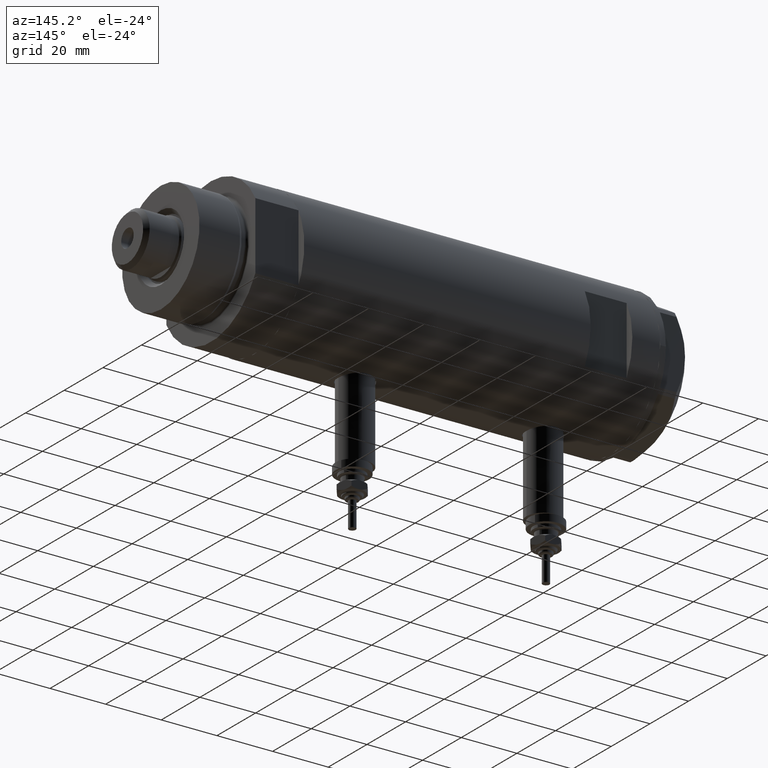
[diagram: clean part render]
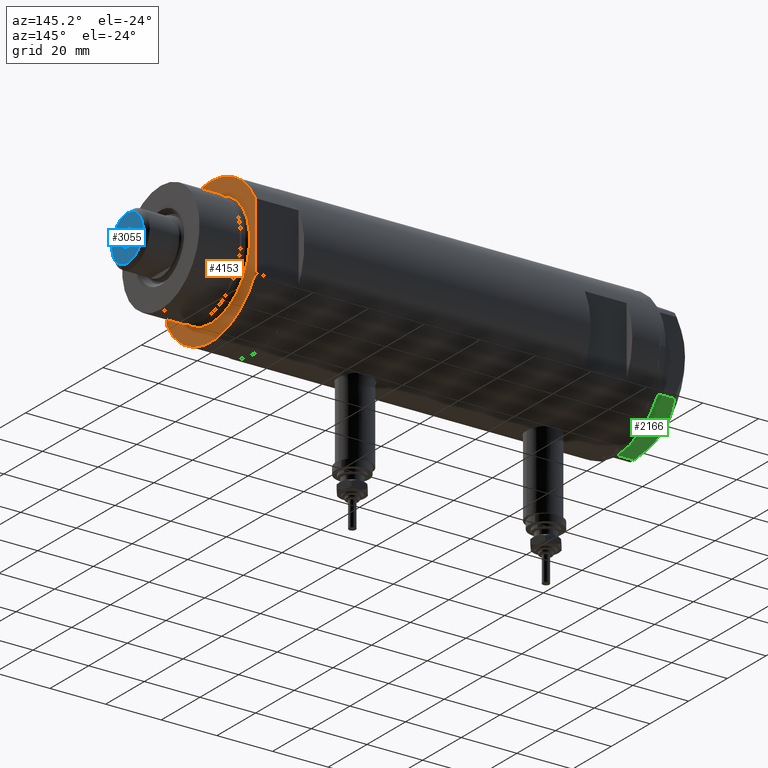
[diagram: same view with three faces highlighted in distinct colors, each labeled with its STEP entity id]
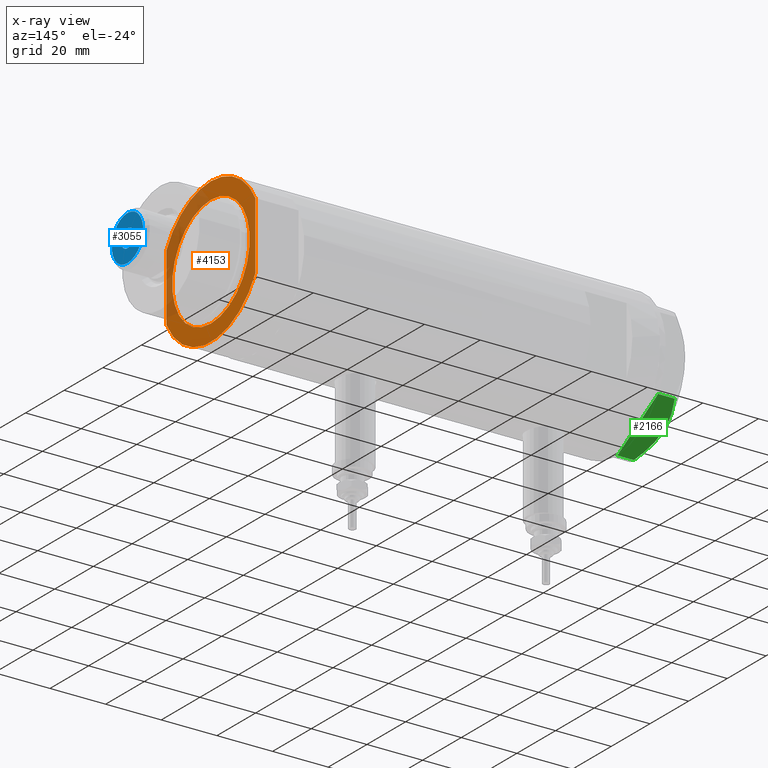
[diagram: x-ray of the same camera — body ghosted, the three highlighted faces saturated]
A machine part, auxiliary view with three faces highlighted in distinct colors.
The next image is the same camera in x-ray (body ghosted, the three faces saturated) — at least one of them is partly hidden behind the body in this view.
Their STEP definitions:

[orange] entity #4153 — the highlighted planar face has unit normal (1, 0, -0).
#141 = DIRECTION ( 'NONE',  ( -0.000000000000000000, -0.000000000000000000, -1.000000000000000000 ) ) ;
#176 = LINE ( 'NONE', #3622, #2680 ) ;
#362 = DIRECTION ( 'NONE',  ( 0.000000000000000000, 0.000000000000000000, 1.000000000000000000 ) ) ;
#374 = DIRECTION ( 'NONE',  ( 1.000000000000000000, 0.000000000000000000, 0.000000000000000000 ) ) ;
#481 = VERTEX_POINT ( 'NONE', #3566 ) ;
#552 = ORIENTED_EDGE ( 'NONE', *, *, #3615, .T. ) ;
#643 = AXIS2_PLACEMENT_3D ( 'NONE', #2772, #6214, #1351 ) ;
#678 = ORIENTED_EDGE ( 'NONE', *, *, #4928, .F. ) ;
#739 = VERTEX_POINT ( 'NONE', #4173 ) ;
#825 = DIRECTION ( 'NONE',  ( 1.000000000000000000, 0.000000000000000000, 0.000000000000000000 ) ) ;
#1011 = EDGE_CURVE ( 'NONE', #5907, #739, #5561, .T. ) ;
#1167 = ORIENTED_EDGE ( 'NONE', *, *, #4737, .T. ) ;
#1172 = CIRCLE ( 'NONE', #2685, 20.00000000000000000 ) ;
#1298 = FACE_BOUND ( 'NONE', #2580, .T. ) ;
#1323 = EDGE_CURVE ( 'NONE', #4190, #739, #4773, .T. ) ;
#1351 = DIRECTION ( 'NONE',  ( 1.000000000000000000, 0.000000000000000000, 0.000000000000000000 ) ) ;
#1372 = DIRECTION ( 'NONE',  ( -0.000000000000000000, -0.000000000000000000, -1.000000000000000000 ) ) ;
#1467 = CIRCLE ( 'NONE', #643, 26.00000000000000355 ) ;
#1591 = VERTEX_POINT ( 'NONE', #4505 ) ;
#1764 = DIRECTION ( 'NONE',  ( 1.000000000000000000, 0.000000000000000000, 0.000000000000000000 ) ) ;
#1971 = CIRCLE ( 'NONE', #4284, 20.00000000000000000 ) ;
#2061 = CARTESIAN_POINT ( 'NONE',  ( -12.12435565298215145, 23.00000000000000355, 15.50000000000000000 ) ) ;
#2089 = DIRECTION ( 'NONE',  ( 1.000000000000000000, 0.000000000000000000, 0.000000000000000000 ) ) ;
#2262 = FACE_OUTER_BOUND ( 'NONE', #5101, .T. ) ;
#2580 = EDGE_LOOP ( 'NONE', ( #552, #5566 ) ) ;
#2651 = DIRECTION ( 'NONE',  ( 0.000000000000000000, 0.000000000000000000, 1.000000000000000000 ) ) ;
#2656 = VERTEX_POINT ( 'NONE', #5257 ) ;
#2680 = VECTOR ( 'NONE', #4062, 1000.000000000000000 ) ;
#2685 = AXIS2_PLACEMENT_3D ( 'NONE', #2828, #1372, #374 ) ;
#2772 = CARTESIAN_POINT ( 'NONE',  ( 0.000000000000000000, 0.000000000000000000, 15.50000000000000000 ) ) ;
#2828 = CARTESIAN_POINT ( 'NONE',  ( 0.000000000000000000, 0.000000000000000000, 15.50000000000000000 ) ) ;
#2909 = VERTEX_POINT ( 'NONE', #6117 ) ;
#2954 = AXIS2_PLACEMENT_3D ( 'NONE', #6212, #2651, #1764 ) ;
#3566 = CARTESIAN_POINT ( 'NONE',  ( -26.00000000000000355, 0.000000000000000000, 15.50000000000000000 ) ) ;
#3615 = EDGE_CURVE ( 'NONE', #2656, #2909, #1971, .T. ) ;
#3622 = CARTESIAN_POINT ( 'NONE',  ( -12.12435565298215145, -22.99999999999999645, 15.50000000000000000 ) ) ;
#3633 = VECTOR ( 'NONE', #5909, 1000.000000000000000 ) ;
#3998 = DIRECTION ( 'NONE',  ( 0.000000000000000000, 0.000000000000000000, 1.000000000000000000 ) ) ;
#4062 = DIRECTION ( 'NONE',  ( -1.000000000000000000, -0.000000000000000000, -0.000000000000000000 ) ) ;
#4153 = ADVANCED_FACE ( 'NONE', ( #1298, #2262 ), #5216, .T. ) ;
#4173 = CARTESIAN_POINT ( 'NONE',  ( 12.12435565298214790, 23.00000000000000355, 15.50000000000000000 ) ) ;
#4190 = VERTEX_POINT ( 'NONE', #5859 ) ;
#4284 = AXIS2_PLACEMENT_3D ( 'NONE', #5551, #141, #2089 ) ;
#4479 = CARTESIAN_POINT ( 'NONE',  ( 0.000000000000000000, 0.000000000000000000, 15.50000000000000000 ) ) ;
#4505 = CARTESIAN_POINT ( 'NONE',  ( -12.12435565298215323, -22.99999999999999645, 15.50000000000000000 ) ) ;
#4507 = AXIS2_PLACEMENT_3D ( 'NONE', #4479, #3998, #825 ) ;
#4737 = EDGE_CURVE ( 'NONE', #5907, #481, #1467, .T. ) ;
#4773 = CIRCLE ( 'NONE', #2954, 26.00000000000000355 ) ;
#4801 = AXIS2_PLACEMENT_3D ( 'NONE', #6185, #362, #5699 ) ;
#4928 = EDGE_CURVE ( 'NONE', #4190, #1591, #176, .T. ) ;
#4965 = EDGE_CURVE ( 'NONE', #481, #1591, #6258, .T. ) ;
#4981 = CARTESIAN_POINT ( 'NONE',  ( -12.12435565298214613, 23.00000000000000355, 15.50000000000000000 ) ) ;
#5097 = EDGE_CURVE ( 'NONE', #2909, #2656, #1172, .T. ) ;
#5101 = EDGE_LOOP ( 'NONE', ( #678, #5716, #6080, #1167, #6108 ) ) ;
#5216 = PLANE ( 'NONE',  #4801 ) ;
#5257 = CARTESIAN_POINT ( 'NONE',  ( 20.00000000000000000, 0.000000000000000000, 15.50000000000000000 ) ) ;
#5551 = CARTESIAN_POINT ( 'NONE',  ( 0.000000000000000000, 0.000000000000000000, 15.50000000000000000 ) ) ;
#5561 = LINE ( 'NONE', #2061, #3633 ) ;
#5566 = ORIENTED_EDGE ( 'NONE', *, *, #5097, .T. ) ;
#5699 = DIRECTION ( 'NONE',  ( 1.000000000000000000, 0.000000000000000000, -0.000000000000000000 ) ) ;
#5716 = ORIENTED_EDGE ( 'NONE', *, *, #1323, .T. ) ;
#5859 = CARTESIAN_POINT ( 'NONE',  ( 12.12435565298215323, -22.99999999999999645, 15.50000000000000000 ) ) ;
#5907 = VERTEX_POINT ( 'NONE', #4981 ) ;
#5909 = DIRECTION ( 'NONE',  ( 1.000000000000000000, 0.000000000000000000, 0.000000000000000000 ) ) ;
#6080 = ORIENTED_EDGE ( 'NONE', *, *, #1011, .F. ) ;
#6108 = ORIENTED_EDGE ( 'NONE', *, *, #4965, .T. ) ;
#6117 = CARTESIAN_POINT ( 'NONE',  ( -20.00000000000000000, 2.449293598294706513E-15, 15.50000000000000000 ) ) ;
#6185 = CARTESIAN_POINT ( 'NONE',  ( 0.000000000000000000, 0.000000000000000000, 15.50000000000000000 ) ) ;
#6212 = CARTESIAN_POINT ( 'NONE',  ( 0.000000000000000000, 0.000000000000000000, 15.50000000000000000 ) ) ;
#6214 = DIRECTION ( 'NONE',  ( 0.000000000000000000, 0.000000000000000000, 1.000000000000000000 ) ) ;
#6258 = CIRCLE ( 'NONE', #4507, 26.00000000000000355 ) ;

[blue] entity #3055 — the highlighted planar face has unit normal (1, 0, -0).
#82 = DIRECTION ( 'NONE',  ( 0.000000000000000000, 0.000000000000000000, 1.000000000000000000 ) ) ;
#301 = EDGE_CURVE ( 'NONE', #3924, #766, #2308, .T. ) ;
#476 = ORIENTED_EDGE ( 'NONE', *, *, #301, .F. ) ;
#520 = CARTESIAN_POINT ( 'NONE',  ( 3.249999999999998224, 0.000000000000000000, 149.6000000000000227 ) ) ;
#589 = DIRECTION ( 'NONE',  ( 1.000000000000000000, 0.000000000000000000, 0.000000000000000000 ) ) ;
#709 = CARTESIAN_POINT ( 'NONE',  ( 0.000000000000000000, 0.000000000000000000, 149.6000000000000227 ) ) ;
#766 = VERTEX_POINT ( 'NONE', #5512 ) ;
#1056 = AXIS2_PLACEMENT_3D ( 'NONE', #2506, #82, #589 ) ;
#1199 = CARTESIAN_POINT ( 'NONE',  ( 0.000000000000000000, 0.000000000000000000, 149.6000000000000227 ) ) ;
#1255 = DIRECTION ( 'NONE',  ( 1.000000000000000000, 0.000000000000000000, 0.000000000000000000 ) ) ;
#1262 = AXIS2_PLACEMENT_3D ( 'NONE', #3245, #5289, #1270 ) ;
#1270 = DIRECTION ( 'NONE',  ( 1.000000000000000000, 0.000000000000000000, -0.000000000000000000 ) ) ;
#1466 = CARTESIAN_POINT ( 'NONE',  ( 0.000000000000000000, 0.000000000000000000, 149.6000000000000227 ) ) ;
#1788 = CARTESIAN_POINT ( 'NONE',  ( 8.099999999999981881, 1.077689183249669619E-15, 149.6000000000000227 ) ) ;
#2072 = ORIENTED_EDGE ( 'NONE', *, *, #3982, .F. ) ;
#2308 = CIRCLE ( 'NONE', #5692, 3.249999999999998224 ) ;
#2389 = EDGE_CURVE ( 'NONE', #6097, #2409, #6255, .T. ) ;
#2409 = VERTEX_POINT ( 'NONE', #4541 ) ;
#2506 = CARTESIAN_POINT ( 'NONE',  ( 0.000000000000000000, 0.000000000000000000, 149.6000000000000227 ) ) ;
#2546 = ORIENTED_EDGE ( 'NONE', *, *, #2964, .T. ) ;
#2791 = FACE_BOUND ( 'NONE', #2850, .T. ) ;
#2850 = EDGE_LOOP ( 'NONE', ( #476, #2072 ) ) ;
#2964 = EDGE_CURVE ( 'NONE', #2409, #6097, #6061, .T. ) ;
#2981 = CIRCLE ( 'NONE', #4404, 3.249999999999998224 ) ;
#3033 = ORIENTED_EDGE ( 'NONE', *, *, #2389, .T. ) ;
#3055 = ADVANCED_FACE ( 'NONE', ( #6250, #2791 ), #4727, .T. ) ;
#3200 = DIRECTION ( 'NONE',  ( 1.000000000000000000, 0.000000000000000000, 0.000000000000000000 ) ) ;
#3245 = CARTESIAN_POINT ( 'NONE',  ( 0.000000000000000000, 0.000000000000000000, 149.6000000000000227 ) ) ;
#3924 = VERTEX_POINT ( 'NONE', #520 ) ;
#3982 = EDGE_CURVE ( 'NONE', #766, #3924, #2981, .T. ) ;
#4017 = DIRECTION ( 'NONE',  ( -0.000000000000000000, -0.000000000000000000, 1.000000000000000000 ) ) ;
#4079 = DIRECTION ( 'NONE',  ( 1.000000000000000000, 0.000000000000000000, 0.000000000000000000 ) ) ;
#4404 = AXIS2_PLACEMENT_3D ( 'NONE', #1199, #4017, #4079 ) ;
#4541 = CARTESIAN_POINT ( 'NONE',  ( -8.099999999999981881, 0.000000000000000000, 149.6000000000000227 ) ) ;
#4704 = AXIS2_PLACEMENT_3D ( 'NONE', #1466, #5365, #1255 ) ;
#4727 = PLANE ( 'NONE',  #1262 ) ;
#5150 = DIRECTION ( 'NONE',  ( -0.000000000000000000, -0.000000000000000000, 1.000000000000000000 ) ) ;
#5289 = DIRECTION ( 'NONE',  ( 0.000000000000000000, 0.000000000000000000, 1.000000000000000000 ) ) ;
#5365 = DIRECTION ( 'NONE',  ( 0.000000000000000000, 0.000000000000000000, 1.000000000000000000 ) ) ;
#5512 = CARTESIAN_POINT ( 'NONE',  ( -3.249999999999998224, 3.980102097228895766E-16, 149.6000000000000227 ) ) ;
#5692 = AXIS2_PLACEMENT_3D ( 'NONE', #709, #5150, #3200 ) ;
#5983 = EDGE_LOOP ( 'NONE', ( #2546, #3033 ) ) ;
#6061 = CIRCLE ( 'NONE', #4704, 8.099999999999981881 ) ;
#6097 = VERTEX_POINT ( 'NONE', #1788 ) ;
#6250 = FACE_OUTER_BOUND ( 'NONE', #5983, .T. ) ;
#6255 = CIRCLE ( 'NONE', #1056, 8.099999999999981881 ) ;

[green] entity #2166 — the highlighted planar face has unit normal (0, -0.5, 0.866).
#222 = VECTOR ( 'NONE', #5351, 1000.000000000000000 ) ;
#310 = CARTESIAN_POINT ( 'NONE',  ( 18.67981377008996446, 15.77331687414937278, 7.629374868826049649 ) ) ;
#315 = CARTESIAN_POINT ( 'NONE',  ( 9.678244919010086988, 20.97037507344920826, 9.000000000000001776 ) ) ;
#603 = ORIENTED_EDGE ( 'NONE', *, *, #835, .F. ) ;
#628 = AXIS2_PLACEMENT_3D ( 'NONE', #4697, #3249, #2799 ) ;
#760 = CARTESIAN_POINT ( 'NONE',  ( 11.95865151389051917, 19.65378171203322566, 9.000000000000005329 ) ) ;
#765 = VERTEX_POINT ( 'NONE', #6143 ) ;
#831 = CARTESIAN_POINT ( 'NONE',  ( 4.357207709416038632, 24.04247733877631532, 7.570552255229681116 ) ) ;
#835 = EDGE_CURVE ( 'NONE', #5044, #3993, #4951, .T. ) ;
#866 = CARTESIAN_POINT ( 'NONE',  ( 11.49999999999990408, 19.91858428704219364, 9.000000000000000000 ) ) ;
#883 = CARTESIAN_POINT ( 'NONE',  ( 0.9699484522385816154, 25.99811238272274494, 9.000000000000000000 ) ) ;
#1177 = CARTESIAN_POINT ( 'NONE',  ( 22.03005154776138852, 13.83905619136154819, 5.983800287807532037 ) ) ;
#1251 = CARTESIAN_POINT ( 'NONE',  ( 1.799196345396824492, 25.51934588838292228, 6.431317509509382191 ) ) ;
#1278 = CARTESIAN_POINT ( 'NONE',  ( 11.49999999999990408, 19.91858428704219364, 9.000000000000000000 ) ) ;
#1326 = ORIENTED_EDGE ( 'NONE', *, *, #4885, .T. ) ;
#1404 = VERTEX_POINT ( 'NONE', #1912 ) ;
#1658 = VERTEX_POINT ( 'NONE', #1177 ) ;
#1725 = PLANE ( 'NONE',  #628 ) ;
#1790 = CARTESIAN_POINT ( 'NONE',  ( 0.9999999999999297229, 25.98076211353316722, 0.000000000000000000 ) ) ;
#1843 = CARTESIAN_POINT ( 'NONE',  ( 15.16323225988329959, 17.80361615569442790, 8.637313967156861949 ) ) ;
#1912 = CARTESIAN_POINT ( 'NONE',  ( 0.9699484522385816154, 25.99811238272274494, 0.000000000000000000 ) ) ;
#1955 = LINE ( 'NONE', #5317, #2982 ) ;
#2098 = CARTESIAN_POINT ( 'NONE',  ( 22.03005154776124286, 13.83905619136163168, 9.000000000000000000 ) ) ;
#2103 = ORIENTED_EDGE ( 'NONE', *, *, #2632, .T. ) ;
#2131 = EDGE_CURVE ( 'NONE', #1658, #5044, #3996, .T. ) ;
#2166 = ADVANCED_FACE ( 'NONE', ( #5713 ), #1725, .F. ) ;
#2361 = LINE ( 'NONE', #883, #222 ) ;
#2484 = VECTOR ( 'NONE', #6114, 999.9999999999998863 ) ;
#2632 = EDGE_CURVE ( 'NONE', #3713, #765, #1955, .T. ) ;
#2637 = LINE ( 'NONE', #5061, #4096 ) ;
#2664 = EDGE_CURVE ( 'NONE', #1404, #3993, #2361, .T. ) ;
#2739 = CARTESIAN_POINT ( 'NONE',  ( 2.640413878806739945, 25.03366871902167290, 6.844201024438365089 ) ) ;
#2799 = DIRECTION ( 'NONE',  ( 0.8660254037844415942, -0.4999999999999949485, 0.000000000000000000 ) ) ;
#2885 = ORIENTED_EDGE ( 'NONE', *, *, #4855, .T. ) ;
#2982 = VECTOR ( 'NONE', #4856, 999.9999999999998863 ) ;
#3150 = DIRECTION ( 'NONE',  ( -0.8660254037844415942, 0.4999999999999949485, 0.000000000000000000 ) ) ;
#3160 = CARTESIAN_POINT ( 'NONE',  ( 7.884645426989626671, 22.00591022298560517, 8.707651728476925257 ) ) ;
#3249 = DIRECTION ( 'NONE',  ( -0.4999999999999949485, -0.8660254037844415942, 0.000000000000000000 ) ) ;
#3284 = CARTESIAN_POINT ( 'NONE',  ( 5.229981517798067081, 23.53858114556529912, 7.892128867758392730 ) ) ;
#3677 = CARTESIAN_POINT ( 'NONE',  ( 20.37350567916420019, 14.79546339452108050, 6.877782426143415506 ) ) ;
#3685 = CARTESIAN_POINT ( 'NONE',  ( 0.9699484522385767304, 25.99811238272274849, 5.983800287807627960 ) ) ;
#3713 = VERTEX_POINT ( 'NONE', #5967 ) ;
#3745 = CARTESIAN_POINT ( 'NONE',  ( 16.05322244309623869, 17.28978008384030929, 8.426899937603700153 ) ) ;
#3751 = CARTESIAN_POINT ( 'NONE',  ( 5.671686373602799591, 23.28356272816407824, 8.040681765829278405 ) ) ;
#3769 = ORIENTED_EDGE ( 'NONE', *, *, #2664, .T. ) ;
#3993 = VERTEX_POINT ( 'NONE', #5515 ) ;
#3996 = B_SPLINE_CURVE_WITH_KNOTS ( 'NONE', 3,
 ( #4161, #3677, #310, #3745, #1843, #4193, #6110, #6137, #760, #1278 ),
 .UNSPECIFIED., .F., .F.,
 ( 4, 2, 2, 2, 4 ),
 ( 0.001228959670438493522, 0.007497079744270714746, 0.01063113978118682655, 0.01219816979964488159, 0.01376519981810293489 ),
 .UNSPECIFIED. ) ;
#4096 = VECTOR ( 'NONE', #3150, 999.9999999999998863 ) ;
#4161 = CARTESIAN_POINT ( 'NONE',  ( 22.03005154776138852, 13.83905619136154819, 5.983800287807532037 ) ) ;
#4193 = CARTESIAN_POINT ( 'NONE',  ( 13.80210138309697498, 18.58946543380931260, 8.852712638955710034 ) ) ;
#4226 = ORIENTED_EDGE ( 'NONE', *, *, #5185, .T. ) ;
#4602 = ORIENTED_EDGE ( 'NONE', *, *, #2131, .F. ) ;
#4697 = CARTESIAN_POINT ( 'NONE',  ( 22.99999999999981171, 13.27905619136164184, 9.000000000000000000 ) ) ;
#4734 = CARTESIAN_POINT ( 'NONE',  ( 11.49999999999990408, 19.91858428704219364, 9.000000000000000000 ) ) ;
#4855 = EDGE_CURVE ( 'NONE', #1658, #3713, #4991, .T. ) ;
#4856 = DIRECTION ( 'NONE',  ( -0.8660254037844415942, 0.4999999999999949485, 0.000000000000000000 ) ) ;
#4885 = EDGE_CURVE ( 'NONE', #5202, #1404, #2637, .T. ) ;
#4951 = B_SPLINE_CURVE_WITH_KNOTS ( 'NONE', 3,
 ( #866, #315, #3160, #3751, #3284, #831, #6115, #2739, #1251, #3685 ),
 .UNSPECIFIED., .F., .F.,
 ( 4, 2, 2, 2, 4 ),
 ( 0.01376519981810293489, 0.01998941321701561136, 0.02154546656674377961, 0.02310151991647194786, 0.02621362661592828783 ),
 .UNSPECIFIED. ) ;
#4991 = LINE ( 'NONE', #2098, #5657 ) ;
#5044 = VERTEX_POINT ( 'NONE', #4734 ) ;
#5061 = CARTESIAN_POINT ( 'NONE',  ( 22.99999999999981171, 13.27905619136164184, 0.000000000000000000 ) ) ;
#5185 = EDGE_CURVE ( 'NONE', #765, #5202, #6140, .T. ) ;
#5202 = VERTEX_POINT ( 'NONE', #1790 ) ;
#5203 = CARTESIAN_POINT ( 'NONE',  ( 22.99999999999981171, 13.27905619136164184, 0.000000000000000000 ) ) ;
#5317 = CARTESIAN_POINT ( 'NONE',  ( 22.99999999999981171, 13.27905619136164184, 0.000000000000000000 ) ) ;
#5351 = DIRECTION ( 'NONE',  ( 0.000000000000000000, 0.000000000000000000, 1.000000000000000000 ) ) ;
#5515 = CARTESIAN_POINT ( 'NONE',  ( 0.9699484522385767304, 25.99811238272274849, 5.983800287807627960 ) ) ;
#5657 = VECTOR ( 'NONE', #6075, 1000.000000000000000 ) ;
#5713 = FACE_OUTER_BOUND ( 'NONE', #6201, .T. ) ;
#5967 = CARTESIAN_POINT ( 'NONE',  ( 22.03005154776124286, 13.83905619136163168, 0.000000000000000000 ) ) ;
#6075 = DIRECTION ( 'NONE',  ( 0.000000000000000000, 0.000000000000000000, -1.000000000000000000 ) ) ;
#6110 = CARTESIAN_POINT ( 'NONE',  ( 13.34348161667005073, 18.85424967941157703, 8.907842277728345692 ) ) ;
#6114 = DIRECTION ( 'NONE',  ( -0.8660254037844415942, 0.4999999999999949485, 0.000000000000000000 ) ) ;
#6115 = CARTESIAN_POINT ( 'NONE',  ( 3.925137811030050994, 24.29193301091819635, 7.397272853991373687 ) ) ;
#6137 = CARTESIAN_POINT ( 'NONE',  ( 12.41906678023027588, 19.38796083407295967, 8.981686407609410949 ) ) ;
#6140 = LINE ( 'NONE', #5203, #2484 ) ;
#6143 = CARTESIAN_POINT ( 'NONE',  ( 21.99999999999987210, 13.85640646055121827, 0.000000000000000000 ) ) ;
#6201 = EDGE_LOOP ( 'NONE', ( #4602, #2885, #2103, #4226, #1326, #3769, #603 ) ) ;